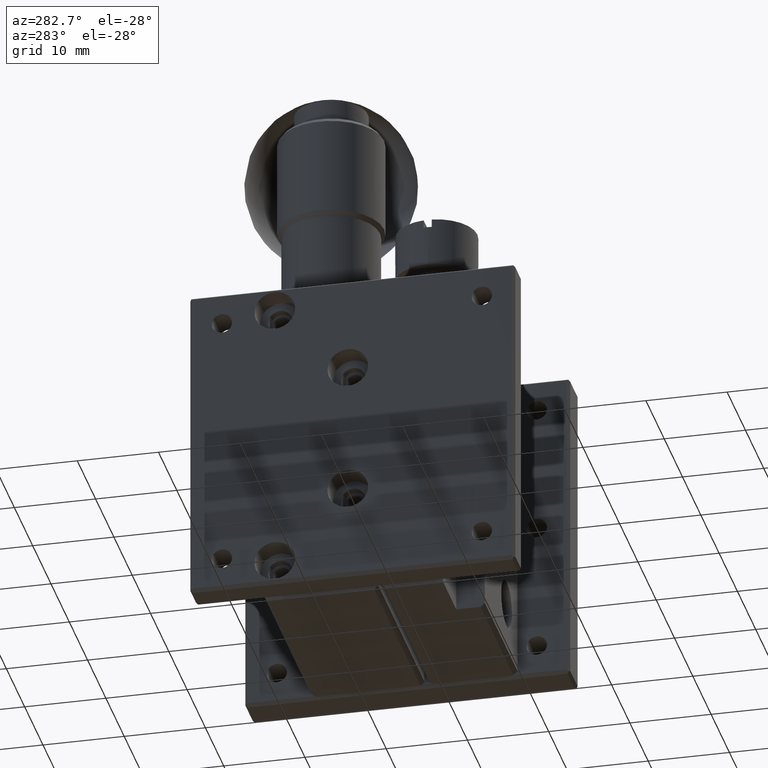
[diagram: clean part render]
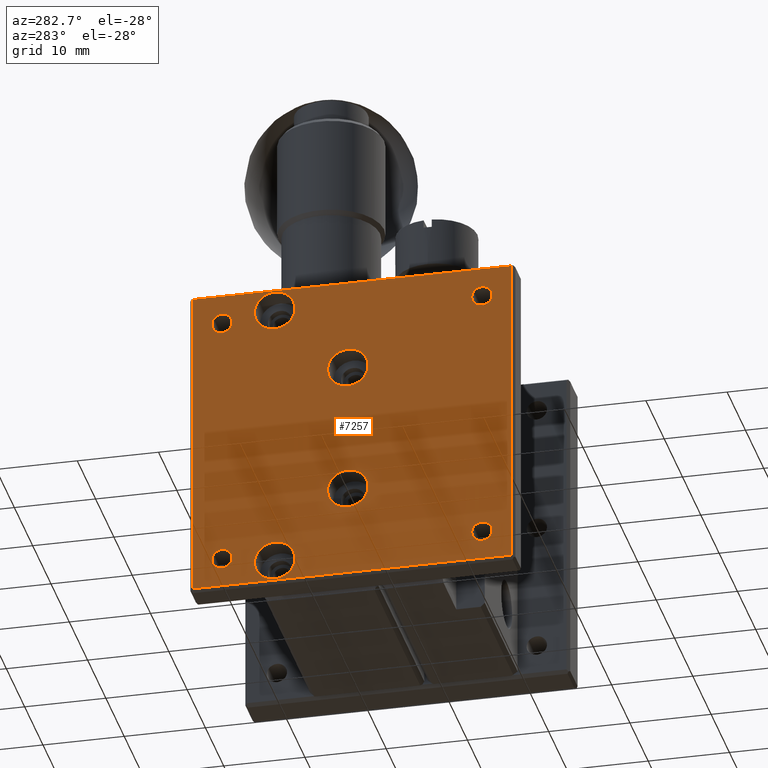
[diagram: same view with one face highlighted and labeled with its STEP entity id]
A machine part, auxiliary view. The second image highlights one B-rep face of the part: STEP entity #7257.
In plain terms, the highlighted planar face has unit normal (-1, 0, 0).
Its self-contained STEP definition (entity closure, byte-faithful):
#222 = VERTEX_POINT ( 'NONE', #3008 ) ;
#236 = VERTEX_POINT ( 'NONE', #646 ) ;
#267 = DIRECTION ( 'NONE',  ( -0.000000000000000000, -1.000000000000000000, 0.000000000000000000 ) ) ;
#296 = FACE_BOUND ( 'NONE', #996, .T. ) ;
#348 = CIRCLE ( 'NONE', #765, 2.500000000000000444 ) ;
#369 = VECTOR ( 'NONE', #7088, 1000.000000000000000 ) ;
#377 = FACE_OUTER_BOUND ( 'NONE', #639, .T. ) ;
#561 = CARTESIAN_POINT ( 'NONE',  ( -12.00000000000000000, -5.250000000000009770, -0.3333333333333451942 ) ) ;
#639 = EDGE_LOOP ( 'NONE', ( #5045, #4466, #1585, #3719 ) ) ;
#646 = CARTESIAN_POINT ( 'NONE',  ( -11.99999999999997868, -24.91666666666669272, -39.66666666666667851 ) ) ;
#747 = EDGE_CURVE ( 'NONE', #5278, #5278, #1273, .T. ) ;
#765 = AXIS2_PLACEMENT_3D ( 'NONE', #3309, #7421, #3441 ) ;
#815 = CARTESIAN_POINT ( 'NONE',  ( -11.99999999999999645, 10.75000000000000000, -36.00000000000000711 ) ) ;
#911 = VERTEX_POINT ( 'NONE', #5993 ) ;
#949 = FACE_BOUND ( 'NONE', #1165, .T. ) ;
#996 = EDGE_LOOP ( 'NONE', ( #7251 ) ) ;
#1044 = ORIENTED_EDGE ( 'NONE', *, *, #747, .T. ) ;
#1127 = EDGE_CURVE ( 'NONE', #911, #236, #4899, .T. ) ;
#1165 = EDGE_LOOP ( 'NONE', ( #6055 ) ) ;
#1219 = DIRECTION ( 'NONE',  ( 1.000000000000000000, 0.000000000000000000, 0.000000000000000000 ) ) ;
#1271 = CARTESIAN_POINT ( 'NONE',  ( -11.99999999999999645, 10.75000000000000000, -4.000000000000009770 ) ) ;
#1273 = CIRCLE ( 'NONE', #3096, 1.250000000000000222 ) ;
#1499 = DIRECTION ( 'NONE',  ( 0.000000000000000000, 0.000000000000000000, 1.000000000000000000 ) ) ;
#1585 = ORIENTED_EDGE ( 'NONE', *, *, #8217, .T. ) ;
#1669 = CIRCLE ( 'NONE', #2234, 2.500000000000002220 ) ;
#1740 = VERTEX_POINT ( 'NONE', #4400 ) ;
#1759 = DIRECTION ( 'NONE',  ( 0.000000000000000000, 0.000000000000000000, 1.000000000000000000 ) ) ;
#1792 = DIRECTION ( 'NONE',  ( 0.000000000000000000, 1.000000000000000000, -0.000000000000000000 ) ) ;
#1812 = ORIENTED_EDGE ( 'NONE', *, *, #4847, .T. ) ;
#1859 = DIRECTION ( 'NONE',  ( 0.000000000000000000, 0.000000000000000000, 1.000000000000000000 ) ) ;
#1878 = DIRECTION ( 'NONE',  ( 0.000000000000000000, 0.000000000000000000, -1.000000000000000000 ) ) ;
#1881 = DIRECTION ( 'NONE',  ( 0.000000000000000000, 0.000000000000000000, -1.000000000000000000 ) ) ;
#2037 = DIRECTION ( 'NONE',  ( 1.000000000000000000, -0.000000000000000000, -0.000000000000000000 ) ) ;
#2069 = AXIS2_PLACEMENT_3D ( 'NONE', #5296, #3329, #7962 ) ;
#2170 = VERTEX_POINT ( 'NONE', #5733 ) ;
#2234 = AXIS2_PLACEMENT_3D ( 'NONE', #6866, #1219, #1878 ) ;
#2297 = EDGE_CURVE ( 'NONE', #5370, #5370, #6535, .T. ) ;
#2299 = CARTESIAN_POINT ( 'NONE',  ( -11.99999999999998401, 14.41666666666667851, -0.3333333333333455273 ) ) ;
#2322 = VERTEX_POINT ( 'NONE', #5022 ) ;
#2488 = AXIS2_PLACEMENT_3D ( 'NONE', #815, #6186, #6274 ) ;
#2668 = CARTESIAN_POINT ( 'NONE',  ( -12.00000000000000000, 4.257982960873589739, -5.500000000000009770 ) ) ;
#2783 = EDGE_CURVE ( 'NONE', #6635, #6635, #4855, .T. ) ;
#2797 = CIRCLE ( 'NONE', #5029, 1.250000000000001110 ) ;
#2819 = ORIENTED_EDGE ( 'NONE', *, *, #5151, .T. ) ;
#2897 = LINE ( 'NONE', #7528, #6688 ) ;
#3008 = CARTESIAN_POINT ( 'NONE',  ( -12.00000000000000000, -4.742568015986949881, -14.31011301676000080 ) ) ;
#3096 = AXIS2_PLACEMENT_3D ( 'NONE', #1271, #7862, #1759 ) ;
#3127 = FACE_BOUND ( 'NONE', #7191, .T. ) ;
#3145 = EDGE_CURVE ( 'NONE', #6725, #6725, #7778, .T. ) ;
#3177 = CARTESIAN_POINT ( 'NONE',  ( -12.00000000000000000, -5.250000000000009770, -12.33333333333330017 ) ) ;
#3309 = CARTESIAN_POINT ( 'NONE',  ( -12.00000000000000000, -4.742568015986949881, -11.81011301676000080 ) ) ;
#3329 = DIRECTION ( 'NONE',  ( 1.000000000000000000, 0.000000000000000000, 0.000000000000000000 ) ) ;
#3441 = DIRECTION ( 'NONE',  ( 0.000000000000000000, 0.000000000000000000, -1.000000000000000000 ) ) ;
#3509 = ORIENTED_EDGE ( 'NONE', *, *, #6201, .T. ) ;
#3519 = LINE ( 'NONE', #4417, #369 ) ;
#3532 = VERTEX_POINT ( 'NONE', #5505 ) ;
#3605 = FACE_BOUND ( 'NONE', #8463, .T. ) ;
#3719 = ORIENTED_EDGE ( 'NONE', *, *, #1127, .T. ) ;
#3774 = FACE_BOUND ( 'NONE', #4551, .T. ) ;
#3858 = DIRECTION ( 'NONE',  ( -1.000000000000000000, 0.000000000000000000, 0.000000000000000000 ) ) ;
#3873 = LINE ( 'NONE', #561, #7717 ) ;
#4160 = AXIS2_PLACEMENT_3D ( 'NONE', #5898, #8562, #1881 ) ;
#4282 = EDGE_LOOP ( 'NONE', ( #8500 ) ) ;
#4356 = EDGE_LOOP ( 'NONE', ( #3509 ) ) ;
#4400 = CARTESIAN_POINT ( 'NONE',  ( -12.00000000000000000, 4.257982960873589739, -39.50000000000000000 ) ) ;
#4415 = EDGE_LOOP ( 'NONE', ( #1812 ) ) ;
#4417 = CARTESIAN_POINT ( 'NONE',  ( -12.00000000000000000, 14.41666666666670160, -12.33333333333330017 ) ) ;
#4456 = CARTESIAN_POINT ( 'NONE',  ( -11.99999999999999645, 10.75000000000000000, -2.750000000000009326 ) ) ;
#4466 = ORIENTED_EDGE ( 'NONE', *, *, #4718, .T. ) ;
#4551 = EDGE_LOOP ( 'NONE', ( #1044 ) ) ;
#4690 = CARTESIAN_POINT ( 'NONE',  ( -11.99999999999999645, -21.25000000000000000, -36.00000000000000711 ) ) ;
#4718 = EDGE_CURVE ( 'NONE', #2170, #6301, #3873, .T. ) ;
#4847 = EDGE_CURVE ( 'NONE', #222, #222, #348, .T. ) ;
#4855 = CIRCLE ( 'NONE', #2488, 1.250000000000001110 ) ;
#4899 = LINE ( 'NONE', #7562, #7758 ) ;
#5022 = CARTESIAN_POINT ( 'NONE',  ( -11.99999999999999645, -21.25000000000000000, -2.750000000000009326 ) ) ;
#5029 = AXIS2_PLACEMENT_3D ( 'NONE', #4690, #2037, #6707 ) ;
#5045 = ORIENTED_EDGE ( 'NONE', *, *, #5676, .T. ) ;
#5151 = EDGE_CURVE ( 'NONE', #2322, #2322, #6203, .T. ) ;
#5218 = DIRECTION ( 'NONE',  ( 0.000000000000000000, 0.000000000000000000, 1.000000000000000000 ) ) ;
#5278 = VERTEX_POINT ( 'NONE', #4456 ) ;
#5296 = CARTESIAN_POINT ( 'NONE',  ( -12.00000000000000000, 4.257982960873589739, -3.000000000000010658 ) ) ;
#5370 = VERTEX_POINT ( 'NONE', #5985 ) ;
#5505 = CARTESIAN_POINT ( 'NONE',  ( -11.99999999999999645, -21.25000000000000000, -34.75000000000000000 ) ) ;
#5676 = EDGE_CURVE ( 'NONE', #236, #2170, #2897, .T. ) ;
#5733 = CARTESIAN_POINT ( 'NONE',  ( -11.99999999999998401, -24.91666666666667851, -0.3333333333333444171 ) ) ;
#5898 = CARTESIAN_POINT ( 'NONE',  ( -12.00000000000000000, -4.742568015986949881, -28.25001588169079980 ) ) ;
#5985 = CARTESIAN_POINT ( 'NONE',  ( -12.00000000000000000, -4.742568015986949881, -30.75001588169079980 ) ) ;
#5993 = CARTESIAN_POINT ( 'NONE',  ( -11.99999999999997691, 14.41666666666667673, -39.66666666666668561 ) ) ;
#6055 = ORIENTED_EDGE ( 'NONE', *, *, #8627, .T. ) ;
#6117 = CARTESIAN_POINT ( 'NONE',  ( -11.99999999999999645, 10.75000000000000000, -34.75000000000000000 ) ) ;
#6186 = DIRECTION ( 'NONE',  ( 1.000000000000000000, -0.000000000000000000, -0.000000000000000000 ) ) ;
#6201 = EDGE_CURVE ( 'NONE', #3532, #3532, #2797, .T. ) ;
#6203 = CIRCLE ( 'NONE', #8436, 1.250000000000000222 ) ;
#6274 = DIRECTION ( 'NONE',  ( 0.000000000000000000, 0.000000000000000000, 1.000000000000000000 ) ) ;
#6282 = FACE_BOUND ( 'NONE', #4415, .T. ) ;
#6301 = VERTEX_POINT ( 'NONE', #2299 ) ;
#6514 = AXIS2_PLACEMENT_3D ( 'NONE', #3177, #3858, #1859 ) ;
#6535 = CIRCLE ( 'NONE', #4160, 2.499999999999998668 ) ;
#6584 = CARTESIAN_POINT ( 'NONE',  ( -11.99999999999999645, -21.25000000000000000, -4.000000000000009770 ) ) ;
#6635 = VERTEX_POINT ( 'NONE', #6117 ) ;
#6688 = VECTOR ( 'NONE', #1499, 1000.000000000000000 ) ;
#6707 = DIRECTION ( 'NONE',  ( 0.000000000000000000, 0.000000000000000000, 1.000000000000000000 ) ) ;
#6725 = VERTEX_POINT ( 'NONE', #2668 ) ;
#6866 = CARTESIAN_POINT ( 'NONE',  ( -12.00000000000000000, 4.257982960873589739, -37.00000000000000000 ) ) ;
#6933 = FACE_BOUND ( 'NONE', #4282, .T. ) ;
#7088 = DIRECTION ( 'NONE',  ( -0.000000000000000000, -0.000000000000000000, -1.000000000000000000 ) ) ;
#7191 = EDGE_LOOP ( 'NONE', ( #2819 ) ) ;
#7251 = ORIENTED_EDGE ( 'NONE', *, *, #3145, .T. ) ;
#7257 = ADVANCED_FACE ( 'NONE', ( #377, #3774, #3127, #7588, #6933, #949, #3605, #6282, #296 ), #7844, .T. ) ;
#7408 = DIRECTION ( 'NONE',  ( 1.000000000000000000, -0.000000000000000000, -0.000000000000000000 ) ) ;
#7421 = DIRECTION ( 'NONE',  ( 1.000000000000000000, 0.000000000000000000, 0.000000000000000000 ) ) ;
#7528 = CARTESIAN_POINT ( 'NONE',  ( -12.00000000000000000, -24.91666666666670338, -12.33333333333330017 ) ) ;
#7562 = CARTESIAN_POINT ( 'NONE',  ( -12.00000000000000000, -5.250000000000009770, -39.66666666666669983 ) ) ;
#7588 = FACE_BOUND ( 'NONE', #4356, .T. ) ;
#7717 = VECTOR ( 'NONE', #1792, 1000.000000000000000 ) ;
#7729 = ORIENTED_EDGE ( 'NONE', *, *, #2297, .T. ) ;
#7758 = VECTOR ( 'NONE', #267, 1000.000000000000000 ) ;
#7778 = CIRCLE ( 'NONE', #2069, 2.499999999999999556 ) ;
#7844 = PLANE ( 'NONE',  #6514 ) ;
#7862 = DIRECTION ( 'NONE',  ( 1.000000000000000000, -0.000000000000000000, -0.000000000000000000 ) ) ;
#7962 = DIRECTION ( 'NONE',  ( 0.000000000000000000, 0.000000000000000000, -1.000000000000000000 ) ) ;
#8217 = EDGE_CURVE ( 'NONE', #6301, #911, #3519, .T. ) ;
#8436 = AXIS2_PLACEMENT_3D ( 'NONE', #6584, #7408, #5218 ) ;
#8463 = EDGE_LOOP ( 'NONE', ( #7729 ) ) ;
#8500 = ORIENTED_EDGE ( 'NONE', *, *, #2783, .T. ) ;
#8562 = DIRECTION ( 'NONE',  ( 1.000000000000000000, 0.000000000000000000, 0.000000000000000000 ) ) ;
#8627 = EDGE_CURVE ( 'NONE', #1740, #1740, #1669, .T. ) ;